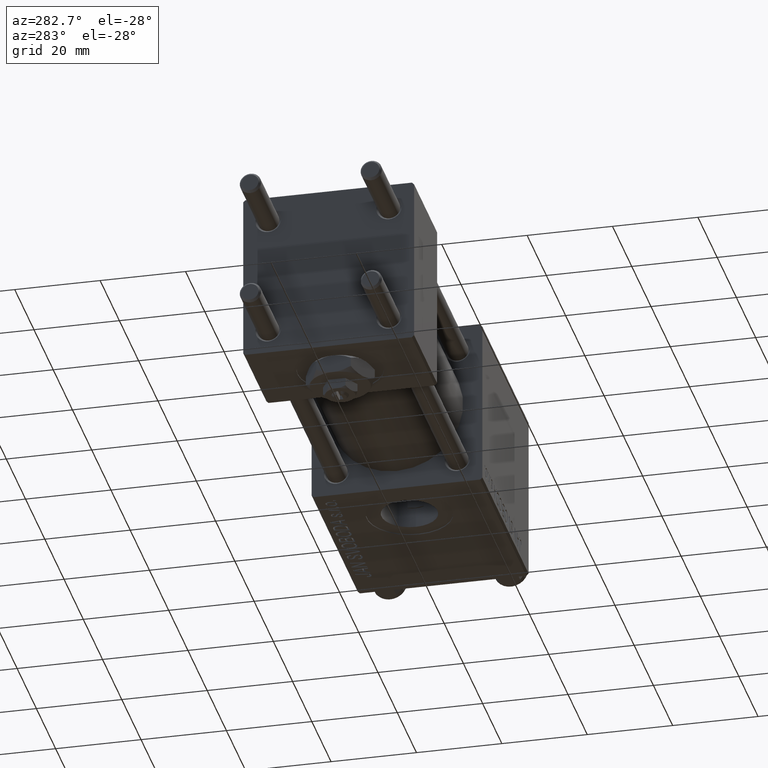
[diagram: clean part render]
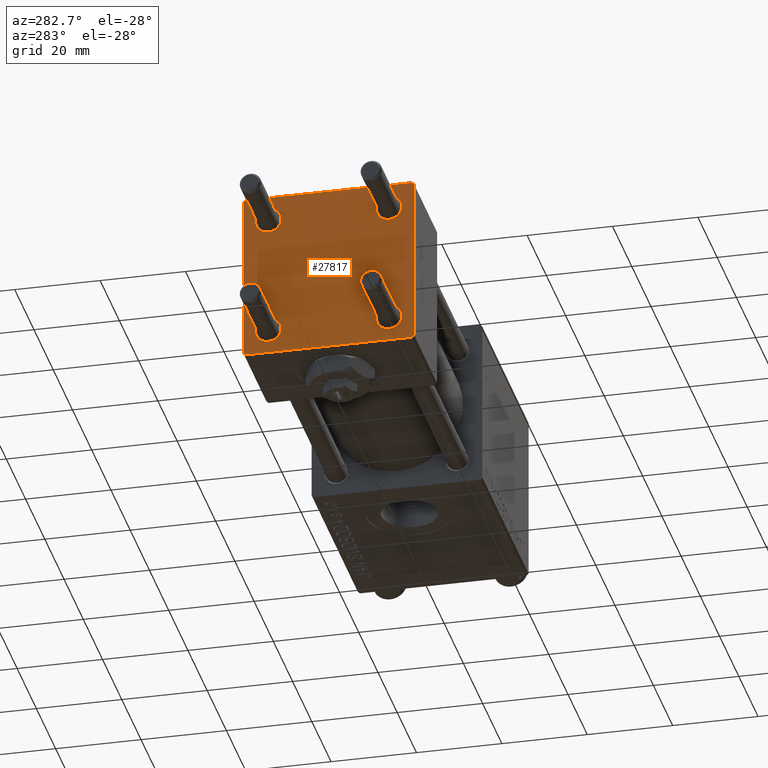
[diagram: same view with one face highlighted and labeled with its STEP entity id]
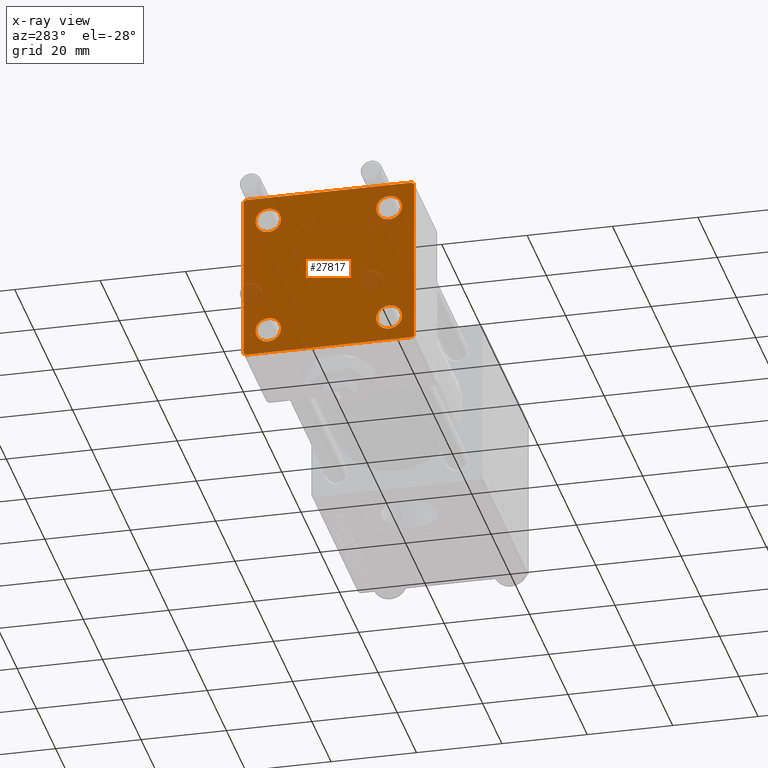
[diagram: x-ray of the same camera — body ghosted, the highlighted face saturated]
A machine part, auxiliary view. The second image highlights one B-rep face of the part: STEP entity #27817.
The next image is the same camera in x-ray: the body ghosted, the highlighted face saturated — about 3% of this face is hidden behind the body in this view.
In plain terms, the highlighted planar face has unit normal (-1, 0, 0).
Its self-contained STEP definition (entity closure, byte-faithful):
#352 = LINE ( 'NONE', #32426, #16339 ) ;
#610 = DIRECTION ( 'NONE',  ( -0.000000000000000000, 0.000000000000000000, 1.000000000000000000 ) ) ;
#1688 = EDGE_CURVE ( 'NONE', #51618, #20856, #20695, .T. ) ;
#2384 = CIRCLE ( 'NONE', #26700, 3.000000000000000888 ) ;
#2961 = CARTESIAN_POINT ( 'NONE',  ( 0.000000000000000000, -19.75000000000020961, -19.74999999999979394 ) ) ;
#3052 = DIRECTION ( 'NONE',  ( 0.000000000000000000, 0.000000000000000000, 1.000000000000000000 ) ) ;
#3079 = VECTOR ( 'NONE', #14693, 1000.000000000000000 ) ;
#3395 = ORIENTED_EDGE ( 'NONE', *, *, #50291, .T. ) ;
#4048 = DIRECTION ( 'NONE',  ( -0.000000000000000000, 0.7071067811865500152, 0.7071067811865451302 ) ) ;
#4400 = CARTESIAN_POINT ( 'NONE',  ( 0.000000000000000000, 14.14999999999999858, 17.15000000000000568 ) ) ;
#4630 = CARTESIAN_POINT ( 'NONE',  ( 0.000000000000000000, 14.14999999999999858, -11.15000000000000036 ) ) ;
#4823 = VERTEX_POINT ( 'NONE', #7489 ) ;
#5511 = AXIS2_PLACEMENT_3D ( 'NONE', #39290, #15396, #31426 ) ;
#5753 = ORIENTED_EDGE ( 'NONE', *, *, #21253, .T. ) ;
#5912 = DIRECTION ( 'NONE',  ( 1.000000000000000000, 0.000000000000000000, 0.000000000000000000 ) ) ;
#6278 = CARTESIAN_POINT ( 'NONE',  ( 0.000000000000000000, 20.00000000000000000, 20.00000000000000000 ) ) ;
#6919 = VECTOR ( 'NONE', #28047, 1000.000000000000000 ) ;
#7489 = CARTESIAN_POINT ( 'NONE',  ( 0.000000000000000000, -14.14999999999999503, 11.15000000000000213 ) ) ;
#8769 = CARTESIAN_POINT ( 'NONE',  ( 0.000000000000000000, -14.14999999999999503, -11.15000000000000391 ) ) ;
#9084 = ORIENTED_EDGE ( 'NONE', *, *, #44529, .T. ) ;
#9709 = DIRECTION ( 'NONE',  ( 0.000000000000000000, 0.7071067811865425767, -0.7071067811865525687 ) ) ;
#10063 = VERTEX_POINT ( 'NONE', #19855 ) ;
#11462 = VECTOR ( 'NONE', #49030, 1000.000000000000000 ) ;
#12061 = ORIENTED_EDGE ( 'NONE', *, *, #48832, .T. ) ;
#12195 = FACE_BOUND ( 'NONE', #22938, .T. ) ;
#12462 = FACE_BOUND ( 'NONE', #41099, .T. ) ;
#12718 = PLANE ( 'NONE',  #35536 ) ;
#12999 = DIRECTION ( 'NONE',  ( 1.000000000000000000, 0.000000000000000000, 0.000000000000000000 ) ) ;
#13109 = EDGE_CURVE ( 'NONE', #10063, #27561, #19763, .T. ) ;
#13799 = ORIENTED_EDGE ( 'NONE', *, *, #36023, .T. ) ;
#14135 = CARTESIAN_POINT ( 'NONE',  ( 0.000000000000000000, -14.14999999999999503, -14.15000000000000391 ) ) ;
#14693 = DIRECTION ( 'NONE',  ( 0.000000000000000000, -1.000000000000000000, -2.602085213965210149E-16 ) ) ;
#14790 = CARTESIAN_POINT ( 'NONE',  ( 0.000000000000000000, -14.14999999999999503, 17.15000000000000568 ) ) ;
#15154 = CARTESIAN_POINT ( 'NONE',  ( 0.000000000000000000, -14.14999999999999503, 14.15000000000000391 ) ) ;
#15396 = DIRECTION ( 'NONE',  ( 1.000000000000000000, 0.000000000000000000, 0.000000000000000000 ) ) ;
#15581 = DIRECTION ( 'NONE',  ( 0.000000000000000000, -0.7071067811865401342, 0.7071067811865549002 ) ) ;
#16339 = VECTOR ( 'NONE', #4048, 1000.000000000000114 ) ;
#16582 = LINE ( 'NONE', #21288, #47245 ) ;
#18383 = ORIENTED_EDGE ( 'NONE', *, *, #22437, .T. ) ;
#19407 = CARTESIAN_POINT ( 'NONE',  ( 0.000000000000000000, -14.14999999999999503, 14.15000000000000391 ) ) ;
#19763 = CIRCLE ( 'NONE', #5511, 3.000000000000000888 ) ;
#19855 = CARTESIAN_POINT ( 'NONE',  ( 0.000000000000000000, 14.14999999999999858, -17.15000000000000213 ) ) ;
#20007 = ORIENTED_EDGE ( 'NONE', *, *, #36511, .T. ) ;
#20010 = CARTESIAN_POINT ( 'NONE',  ( 0.000000000000000000, 14.14999999999999858, 14.15000000000000036 ) ) ;
#20459 = CARTESIAN_POINT ( 'NONE',  ( 0.000000000000000000, 20.00000000000000000, 20.00000000000000000 ) ) ;
#20685 = AXIS2_PLACEMENT_3D ( 'NONE', #32906, #41045, #39998 ) ;
#20695 = LINE ( 'NONE', #48530, #6919 ) ;
#20767 = LINE ( 'NONE', #37543, #42928 ) ;
#20856 = VERTEX_POINT ( 'NONE', #22072 ) ;
#21077 = AXIS2_PLACEMENT_3D ( 'NONE', #37657, #12999, #25849 ) ;
#21139 = ORIENTED_EDGE ( 'NONE', *, *, #13109, .T. ) ;
#21253 = EDGE_CURVE ( 'NONE', #4823, #29650, #31143, .T. ) ;
#21254 = ORIENTED_EDGE ( 'NONE', *, *, #42119, .T. ) ;
#21288 = CARTESIAN_POINT ( 'NONE',  ( 0.000000000000000000, 20.00000000000000000, -20.00000000000000711 ) ) ;
#21391 = CARTESIAN_POINT ( 'NONE',  ( 0.000000000000000000, 14.14999999999999858, 11.14999999999999858 ) ) ;
#21955 = DIRECTION ( 'NONE',  ( 0.000000000000000000, 0.000000000000000000, 1.000000000000000000 ) ) ;
#22072 = CARTESIAN_POINT ( 'NONE',  ( 0.000000000000000000, -20.00000000000000000, -19.49999999999999645 ) ) ;
#22392 = VECTOR ( 'NONE', #27816, 1000.000000000000000 ) ;
#22437 = EDGE_CURVE ( 'NONE', #49762, #47652, #20767, .T. ) ;
#22519 = EDGE_LOOP ( 'NONE', ( #40260, #12061, #49403, #20007, #36520, #24637, #49738, #18383 ) ) ;
#22711 = VERTEX_POINT ( 'NONE', #4400 ) ;
#22938 = EDGE_LOOP ( 'NONE', ( #30867, #13799 ) ) ;
#23947 = ORIENTED_EDGE ( 'NONE', *, *, #38287, .T. ) ;
#24093 = CARTESIAN_POINT ( 'NONE',  ( 0.000000000000000000, 20.00000000000000000, 19.49999999999999289 ) ) ;
#24637 = ORIENTED_EDGE ( 'NONE', *, *, #28694, .T. ) ;
#24884 = CIRCLE ( 'NONE', #20685, 3.000000000000000888 ) ;
#24885 = CARTESIAN_POINT ( 'NONE',  ( -0.000000000000000000, 19.74999999999986855, -19.75000000000014211 ) ) ;
#25214 = EDGE_CURVE ( 'NONE', #36067, #28917, #16582, .T. ) ;
#25249 = CARTESIAN_POINT ( 'NONE',  ( 0.000000000000000000, -14.14999999999999503, -17.15000000000000568 ) ) ;
#25775 = CARTESIAN_POINT ( 'NONE',  ( 0.000000000000000000, -19.50000000000000711, -20.00000000000000000 ) ) ;
#25849 = DIRECTION ( 'NONE',  ( 0.000000000000000000, 0.000000000000000000, 1.000000000000000000 ) ) ;
#25891 = CARTESIAN_POINT ( 'NONE',  ( 0.000000000000000000, -20.00000000000000355, 19.49999999999998224 ) ) ;
#26700 = AXIS2_PLACEMENT_3D ( 'NONE', #42405, #5912, #21955 ) ;
#26830 = VERTEX_POINT ( 'NONE', #8769 ) ;
#26882 = LINE ( 'NONE', #2961, #39933 ) ;
#27250 = CARTESIAN_POINT ( 'NONE',  ( 0.000000000000000000, -19.49999999999999289, 19.99999999999998934 ) ) ;
#27518 = EDGE_LOOP ( 'NONE', ( #9084, #23947 ) ) ;
#27561 = VERTEX_POINT ( 'NONE', #4630 ) ;
#27816 = DIRECTION ( 'NONE',  ( 0.000000000000000000, 0.000000000000000000, -1.000000000000000000 ) ) ;
#27817 = ADVANCED_FACE ( 'NONE', ( #12462, #48429, #35815, #12195, #28482 ), #12718, .T. ) ;
#28047 = DIRECTION ( 'NONE',  ( 0.000000000000000000, 8.673617379884036705E-17, -1.000000000000000000 ) ) ;
#28482 = FACE_OUTER_BOUND ( 'NONE', #22519, .T. ) ;
#28694 = EDGE_CURVE ( 'NONE', #51618, #43094, #352, .T. ) ;
#28917 = VERTEX_POINT ( 'NONE', #25775 ) ;
#29650 = VERTEX_POINT ( 'NONE', #14790 ) ;
#30055 = CARTESIAN_POINT ( 'NONE',  ( 0.000000000000000000, 19.50000000000000000, 20.00000000000000000 ) ) ;
#30716 = AXIS2_PLACEMENT_3D ( 'NONE', #20010, #38907, #42850 ) ;
#30867 = ORIENTED_EDGE ( 'NONE', *, *, #36624, .T. ) ;
#31143 = CIRCLE ( 'NONE', #37840, 3.000000000000000888 ) ;
#31426 = DIRECTION ( 'NONE',  ( 0.000000000000000000, 0.000000000000000000, 1.000000000000000000 ) ) ;
#31431 = VERTEX_POINT ( 'NONE', #21391 ) ;
#31440 = DIRECTION ( 'NONE',  ( 0.000000000000000000, 0.000000000000000000, 1.000000000000000000 ) ) ;
#31654 = CIRCLE ( 'NONE', #45919, 3.000000000000000888 ) ;
#32414 = CIRCLE ( 'NONE', #30716, 3.000000000000000888 ) ;
#32426 = CARTESIAN_POINT ( 'NONE',  ( -0.000000000000000000, -19.74999999999992539, 19.75000000000006395 ) ) ;
#32468 = EDGE_LOOP ( 'NONE', ( #21254, #21139 ) ) ;
#32906 = CARTESIAN_POINT ( 'NONE',  ( 0.000000000000000000, 14.14999999999999858, 14.15000000000000036 ) ) ;
#35407 = DIRECTION ( 'NONE',  ( 1.000000000000000000, 0.000000000000000000, 0.000000000000000000 ) ) ;
#35536 = AXIS2_PLACEMENT_3D ( 'NONE', #36610, #43962, #610 ) ;
#35815 = FACE_BOUND ( 'NONE', #32468, .T. ) ;
#36023 = EDGE_CURVE ( 'NONE', #31431, #22711, #32414, .T. ) ;
#36067 = VERTEX_POINT ( 'NONE', #40743 ) ;
#36511 = EDGE_CURVE ( 'NONE', #28917, #20856, #26882, .T. ) ;
#36520 = ORIENTED_EDGE ( 'NONE', *, *, #1688, .F. ) ;
#36610 = CARTESIAN_POINT ( 'NONE',  ( 0.000000000000000000, 0.000000000000000000, 0.000000000000000000 ) ) ;
#36624 = EDGE_CURVE ( 'NONE', #22711, #31431, #24884, .T. ) ;
#37292 = DIRECTION ( 'NONE',  ( 0.000000000000000000, -1.000000000000000000, 1.734723475976807094E-16 ) ) ;
#37543 = CARTESIAN_POINT ( 'NONE',  ( -0.000000000000000000, 19.75000000000013500, 19.74999999999986144 ) ) ;
#37657 = CARTESIAN_POINT ( 'NONE',  ( 0.000000000000000000, -14.14999999999999503, -14.15000000000000391 ) ) ;
#37840 = AXIS2_PLACEMENT_3D ( 'NONE', #15154, #46928, #31440 ) ;
#38064 = LINE ( 'NONE', #6278, #3079 ) ;
#38120 = EDGE_CURVE ( 'NONE', #47652, #46617, #44892, .T. ) ;
#38287 = EDGE_CURVE ( 'NONE', #38775, #26830, #31654, .T. ) ;
#38775 = VERTEX_POINT ( 'NONE', #25249 ) ;
#38907 = DIRECTION ( 'NONE',  ( 1.000000000000000000, 0.000000000000000000, 0.000000000000000000 ) ) ;
#39213 = CARTESIAN_POINT ( 'NONE',  ( 0.000000000000000000, 20.00000000000000000, -19.50000000000002132 ) ) ;
#39290 = CARTESIAN_POINT ( 'NONE',  ( 0.000000000000000000, 14.14999999999999858, -14.15000000000000036 ) ) ;
#39933 = VECTOR ( 'NONE', #15581, 1000.000000000000000 ) ;
#39998 = DIRECTION ( 'NONE',  ( 0.000000000000000000, 0.000000000000000000, 1.000000000000000000 ) ) ;
#40260 = ORIENTED_EDGE ( 'NONE', *, *, #38120, .T. ) ;
#40743 = CARTESIAN_POINT ( 'NONE',  ( 0.000000000000000000, 19.50000000000000711, -20.00000000000000711 ) ) ;
#40861 = CIRCLE ( 'NONE', #46694, 3.000000000000000888 ) ;
#41045 = DIRECTION ( 'NONE',  ( 1.000000000000000000, 0.000000000000000000, 0.000000000000000000 ) ) ;
#41099 = EDGE_LOOP ( 'NONE', ( #3395, #5753 ) ) ;
#42119 = EDGE_CURVE ( 'NONE', #27561, #10063, #2384, .T. ) ;
#42405 = CARTESIAN_POINT ( 'NONE',  ( 0.000000000000000000, 14.14999999999999858, -14.15000000000000036 ) ) ;
#42744 = CIRCLE ( 'NONE', #21077, 3.000000000000000888 ) ;
#42850 = DIRECTION ( 'NONE',  ( 0.000000000000000000, 0.000000000000000000, 1.000000000000000000 ) ) ;
#42928 = VECTOR ( 'NONE', #9709, 999.9999999999998863 ) ;
#43094 = VERTEX_POINT ( 'NONE', #27250 ) ;
#43962 = DIRECTION ( 'NONE',  ( -1.000000000000000000, 0.000000000000000000, -0.000000000000000000 ) ) ;
#44529 = EDGE_CURVE ( 'NONE', #26830, #38775, #42744, .T. ) ;
#44892 = LINE ( 'NONE', #20459, #22392 ) ;
#45364 = LINE ( 'NONE', #24885, #11462 ) ;
#45919 = AXIS2_PLACEMENT_3D ( 'NONE', #14135, #46166, #3052 ) ;
#46166 = DIRECTION ( 'NONE',  ( 1.000000000000000000, 0.000000000000000000, 0.000000000000000000 ) ) ;
#46617 = VERTEX_POINT ( 'NONE', #39213 ) ;
#46694 = AXIS2_PLACEMENT_3D ( 'NONE', #19407, #35407, #51426 ) ;
#46928 = DIRECTION ( 'NONE',  ( 1.000000000000000000, 0.000000000000000000, 0.000000000000000000 ) ) ;
#47245 = VECTOR ( 'NONE', #37292, 1000.000000000000000 ) ;
#47652 = VERTEX_POINT ( 'NONE', #24093 ) ;
#48429 = FACE_BOUND ( 'NONE', #27518, .T. ) ;
#48530 = CARTESIAN_POINT ( 'NONE',  ( 0.000000000000000000, -20.00000000000000355, 19.99999999999998934 ) ) ;
#48832 = EDGE_CURVE ( 'NONE', #46617, #36067, #45364, .T. ) ;
#49030 = DIRECTION ( 'NONE',  ( -0.000000000000000000, -0.7071067811865524577, -0.7071067811865426878 ) ) ;
#49403 = ORIENTED_EDGE ( 'NONE', *, *, #25214, .T. ) ;
#49738 = ORIENTED_EDGE ( 'NONE', *, *, #50058, .F. ) ;
#49762 = VERTEX_POINT ( 'NONE', #30055 ) ;
#50058 = EDGE_CURVE ( 'NONE', #49762, #43094, #38064, .T. ) ;
#50291 = EDGE_CURVE ( 'NONE', #29650, #4823, #40861, .T. ) ;
#51426 = DIRECTION ( 'NONE',  ( 0.000000000000000000, 0.000000000000000000, 1.000000000000000000 ) ) ;
#51618 = VERTEX_POINT ( 'NONE', #25891 ) ;